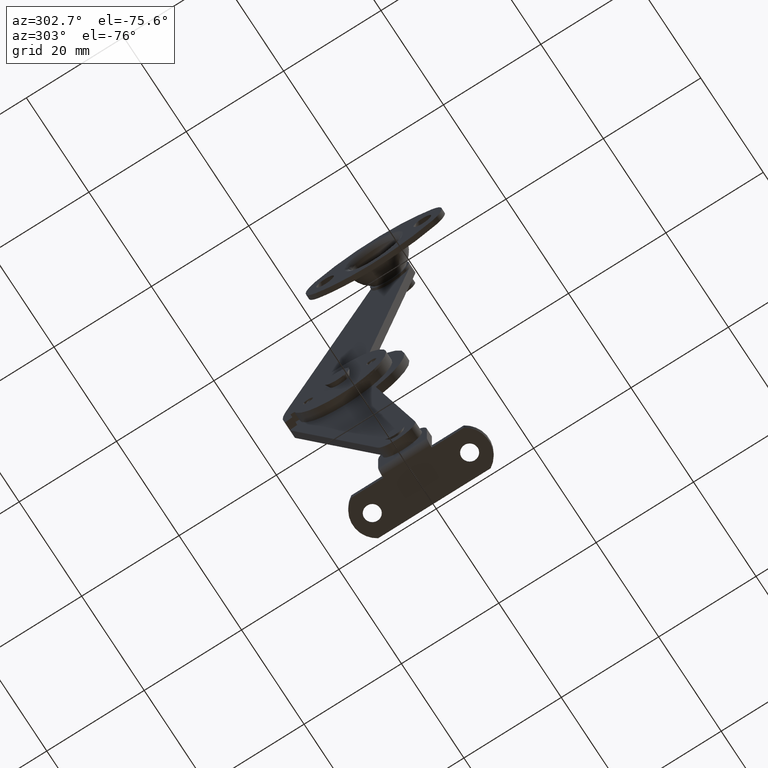
[diagram: clean part render]
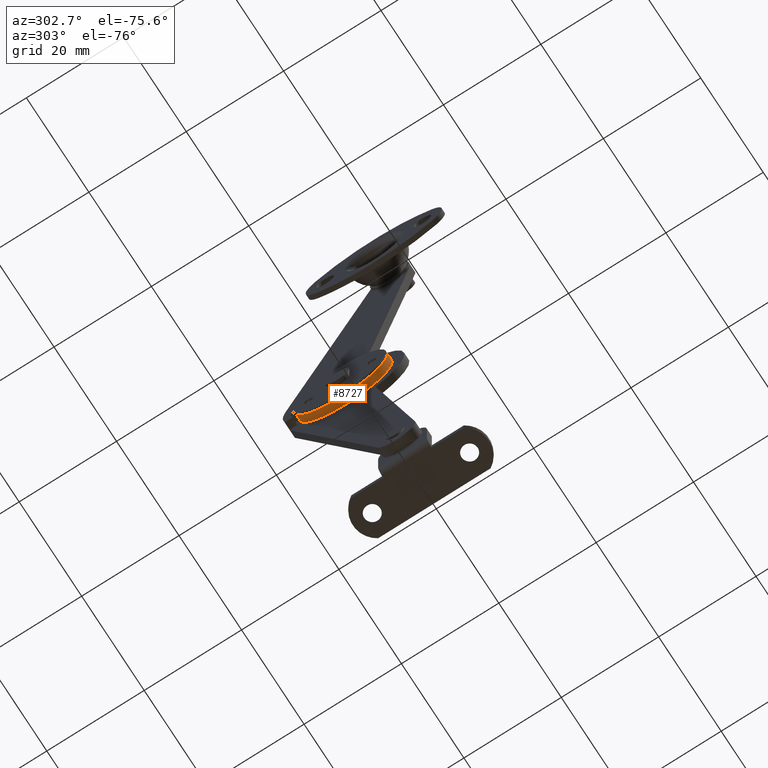
[diagram: same view with one face highlighted and labeled with its STEP entity id]
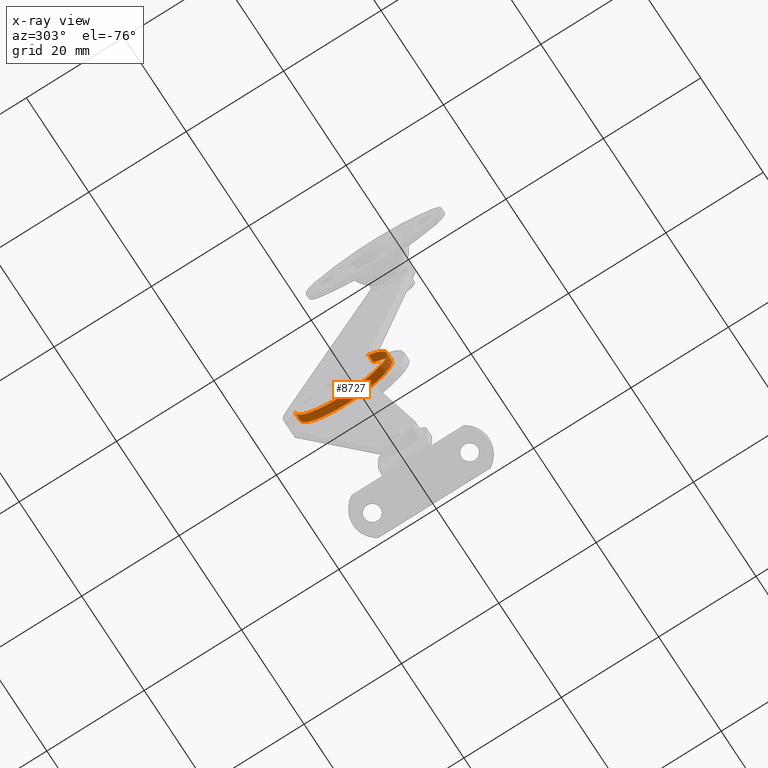
[diagram: x-ray of the same camera — body ghosted, the highlighted face saturated]
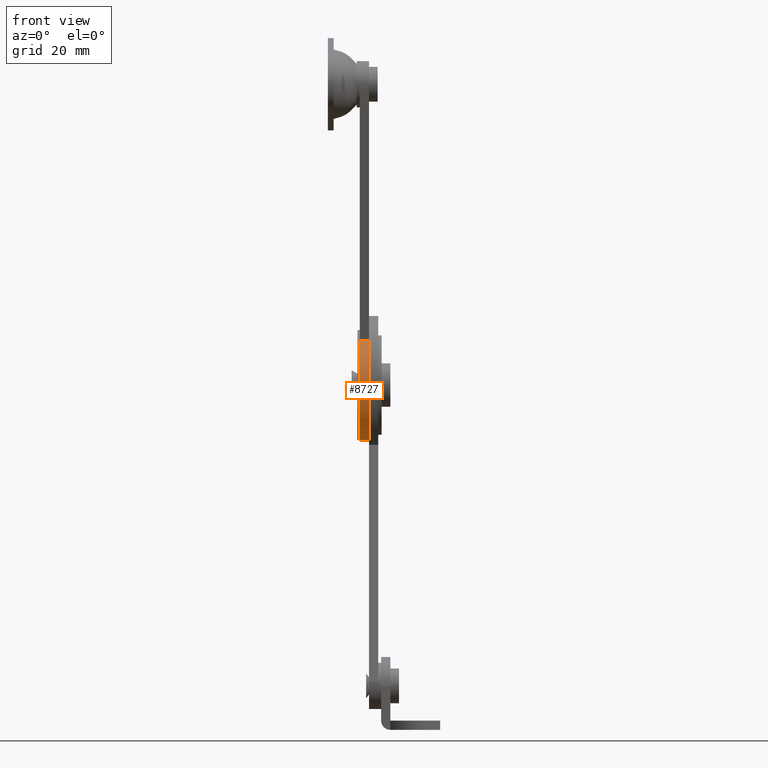
[diagram: same view with one face highlighted and labeled with its STEP entity id]
A machine part, auxiliary view. The second image highlights one B-rep face of the part: STEP entity #8727.
The next image is the same camera in x-ray: the body ghosted, the highlighted face saturated — about 0% of this face is hidden behind the body in this view.
A second angle (front view) of the same face is appended — the face is thin or edge-on in the first view.
In plain terms, the highlighted face is a freeform B-spline surface patch.
Its self-contained STEP definition (entity closure, byte-faithful):
#8419=CARTESIAN_POINT('',(7.099998474121129,4.656469198437160,7.680902571423180));
#8420=VERTEX_POINT('',#8419);
#8428=CARTESIAN_POINT('',(7.099998474121129,5.937670369422711,-8.466398796256804));
#8429=VERTEX_POINT('',#8428);
#8430=CARTESIAN_POINT('',(7.099998474121129,4.656469198437160,7.680902571423180));
#8431=CARTESIAN_POINT('',(7.099998474121134,4.084674890781572,7.264871438171109));
#8432=CARTESIAN_POINT('',(7.099998474121125,3.203485215183897,6.458667865161681));
#8433=CARTESIAN_POINT('',(7.099998474121130,2.080351654999419,4.958255166138802));
#8434=CARTESIAN_POINT('',(7.099998474121122,1.303574776849243,3.387134701351992));
#8435=CARTESIAN_POINT('',(7.099998474121208,0.788964370895096,1.450799136912070));
#8436=CARTESIAN_POINT('',(7.099998474120907,0.687732236075419,-0.478692396132566));
#8437=CARTESIAN_POINT('',(7.099998474121479,0.996965935983563,-2.407597367594883));
#8438=CARTESIAN_POINT('',(7.099998474120658,1.536844477576256,-3.884966780962328));
#8439=CARTESIAN_POINT('',(7.099998474121305,2.303410796083655,-5.281997043939483));
#8440=CARTESIAN_POINT('',(7.099998474121183,3.264869058144763,-6.527681503594284));
#8441=CARTESIAN_POINT('',(7.099998474120984,4.559142699207901,-7.667353875431160));
#8442=CARTESIAN_POINT('',(7.099998474121462,5.487534515975678,-8.237321549593775));
#8443=CARTESIAN_POINT('',(7.099998474121129,5.937670369422711,-8.466398796256804));
#8444=B_SPLINE_CURVE_WITH_KNOTS('',3,(#8430,#8431,#8432,#8433,#8434,#8435,#8436,#8437,#8438,#8439,#8440,#8441,#8442,#8443),.UNSPECIFIED.,.F.,.U.,(4,1,1,1,1,1,1,1,1,1,1,4),(0.000000155767108,2.121361335697557,3.560853023858369,5.606478112943421,7.349032828535579,9.546173587885868,11.364437923839080,13.182772189455211,14.243452115742540,16.137536458008160,17.880121786336641,19.395342121586548),.UNSPECIFIED.);
#8445=EDGE_CURVE('',#8420,#8429,#8444,.T.);
#8447=CARTESIAN_POINT('',(7.099998474121129,19.746973262321148,0.0));
#8448=VERTEX_POINT('',#8447);
#8449=CARTESIAN_POINT('',(7.099998474121129,5.937670369422711,-8.466398796256804));
#8450=CARTESIAN_POINT('',(7.099998474121105,6.702791632096307,-8.856152685871408));
#8451=CARTESIAN_POINT('',(7.099998474121150,7.978505447440620,-9.300105053948473));
#8452=CARTESIAN_POINT('',(7.099998474121103,10.039446812884950,-9.556754378664090));
#8453=CARTESIAN_POINT('',(7.099998474121158,11.688176623646800,-9.445353926765151));
#8454=CARTESIAN_POINT('',(7.099998474121088,13.257442397512641,-9.042941324443525));
#8455=CARTESIAN_POINT('',(7.099998474121146,14.521751506314541,-8.522543718540669));
#8456=CARTESIAN_POINT('',(7.099998474121123,15.674413837817159,-7.834677401869753));
#8457=CARTESIAN_POINT('',(7.099998474121133,16.837632628512871,-6.898689657837614));
#8458=CARTESIAN_POINT('',(7.099998474121111,17.958957913411648,-5.655144365470036));
#8459=CARTESIAN_POINT('',(7.099998474121122,18.812301414592461,-4.212915695702821));
#8460=CARTESIAN_POINT('',(7.099998474121125,19.538498141449899,-2.323145343613707));
#8461=CARTESIAN_POINT('',(7.099998474121269,19.747465840628951,-0.959730492879095));
#8462=CARTESIAN_POINT('',(7.099998474121129,19.746973262321148,0.0));
#8463=B_SPLINE_CURVE_WITH_KNOTS('',3,(#8449,#8450,#8451,#8452,#8453,#8454,#8455,#8456,#8457,#8458,#8459,#8460,#8461,#8462),.UNSPECIFIED.,.F.,.U.,(4,1,1,1,1,1,1,1,1,1,1,4),(0.000000155776981,2.575921705882248,4.015431070054653,6.212581897844586,7.500548499585385,8.864307468413367,10.303718966746731,11.515954071329389,13.334293185062410,15.304137321411060,16.516367007691638,19.395338404855661),.UNSPECIFIED.);
#8464=EDGE_CURVE('',#8429,#8448,#8463,.T.);
#8556=CARTESIAN_POINT('',(5.500000000000000,4.656469198437160,7.680902571423180));
#8557=VERTEX_POINT('',#8556);
#8611=CARTESIAN_POINT('',(5.500000000000000,19.746973262321148,0.0));
#8612=VERTEX_POINT('',#8611);
#8618=CARTESIAN_POINT('',(5.500000000000000,5.937670369422711,-8.466398796256804));
#8619=VERTEX_POINT('',#8618);
#8620=CARTESIAN_POINT('',(5.500000000000000,5.937670369422711,-8.466398796256804));
#8621=CARTESIAN_POINT('',(5.499999999999994,6.410283466294615,-8.706990703509902));
#8622=CARTESIAN_POINT('',(5.500000000000011,7.466354850456902,-9.137465978531964));
#8623=CARTESIAN_POINT('',(5.499999999999966,9.005499612903677,-9.461735896553616));
#8624=CARTESIAN_POINT('',(5.500000000000084,10.775689197786020,-9.539985324447740));
#8625=CARTESIAN_POINT('',(5.499999999999888,12.487740566786719,-9.300029491827903));
#8626=CARTESIAN_POINT('',(5.500000000000068,14.421874321180940,-8.610040843958021));
#8627=CARTESIAN_POINT('',(5.499999999999977,16.069908337003870,-7.599762606238156));
#8628=CARTESIAN_POINT('',(5.500000000000003,17.332192200081391,-6.386899899740438));
#8629=CARTESIAN_POINT('',(5.500000000000003,18.281443326044329,-5.138147547879933));
#8630=CARTESIAN_POINT('',(5.499999999999912,19.118196700240691,-3.601220276387870));
#8631=CARTESIAN_POINT('',(5.500000000000186,19.644184106006769,-1.793069675451823));
#8632=CARTESIAN_POINT('',(5.499999999999936,19.746975247109930,-0.505065847495876));
#8633=CARTESIAN_POINT('',(5.500000000000000,19.746973262321148,0.0));
#8634=B_SPLINE_CURVE_WITH_KNOTS('',3,(#8620,#8621,#8622,#8623,#8624,#8625,#8626,#8627,#8628,#8629,#8630,#8631,#8632,#8633),.UNSPECIFIED.,.F.,.U.,(4,1,1,1,1,1,1,1,1,1,1,4),(0.000000155776981,1.590986799744687,3.409328425976419,4.697308775019891,6.894464404159786,8.561272004270398,10.834071939926609,12.652407877500220,13.788867640935941,15.531437796714419,17.880118359947929,19.395338404855661),.UNSPECIFIED.);
#8635=EDGE_CURVE('',#8619,#8612,#8634,.T.);
#8637=CARTESIAN_POINT('',(5.500000000000000,4.656469198437160,7.680902571423180));
#8638=CARTESIAN_POINT('',(5.499999999999996,3.880222101710592,7.116529838066773));
#8639=CARTESIAN_POINT('',(5.499999999999999,2.882690155021486,6.127259352451097));
#8640=CARTESIAN_POINT('',(5.500000000000002,1.870770848077844,4.550968747433390));
#8641=CARTESIAN_POINT('',(5.500000000000003,1.209492339300113,3.098830711306991));
#8642=CARTESIAN_POINT('',(5.499999999999988,0.829339654638088,1.570550086127214));
#8643=CARTESIAN_POINT('',(5.500000000000017,0.716018226170354,0.005695115790474));
#8644=CARTESIAN_POINT('',(5.499999999999962,0.799367026014176,-1.232499039855371));
#8645=CARTESIAN_POINT('',(5.500000000000054,1.084084027163781,-2.645836374572812));
#8646=CARTESIAN_POINT('',(5.499999999999884,1.676003130295425,-4.266335817250842));
#8647=CARTESIAN_POINT('',(5.500000000000081,2.657634567206474,-5.812356561964253));
#8648=CARTESIAN_POINT('',(5.499999999999938,4.083571331305950,-7.321481364101527));
#8649=CARTESIAN_POINT('',(5.500000000000189,5.172282984262086,-8.077154885653984));
#8650=CARTESIAN_POINT('',(5.500000000000000,5.937670369422711,-8.466398796256804));
#8651=B_SPLINE_CURVE_WITH_KNOTS('',3,(#8637,#8638,#8639,#8640,#8641,#8642,#8643,#8644,#8645,#8646,#8647,#8648,#8649,#8650),.UNSPECIFIED.,.F.,.U.,(4,1,1,1,1,1,1,1,1,1,1,4),(0.000000155767108,2.878971063833806,4.166959632383692,5.606478112943421,7.652077235956732,8.864309167096774,10.303720941221350,11.364437923839080,13.182772189455211,15.455667468214751,16.819412495613680,19.395342121586548),.UNSPECIFIED.);
#8652=EDGE_CURVE('',#8557,#8619,#8651,.T.);
#8689=CARTESIAN_POINT('',(5.460000038146972,19.743502593022750,0.256769684978388));
#8690=CARTESIAN_POINT('',(7.140998435020483,19.743502593022750,0.256769684978388));
#8691=CARTESIAN_POINT('',(5.460000038146972,19.958957940985695,-7.711764573877558));
#8692=CARTESIAN_POINT('',(7.140998435020483,19.958957940985695,-7.711764573877558));
#8693=CARTESIAN_POINT('',(5.460000038146972,12.148897051263329,-9.307668123706243));
#8694=CARTESIAN_POINT('',(7.140998435020483,12.148897051263329,-9.307668123706243));
#8695=CARTESIAN_POINT('',(5.460000038146972,4.338836161540960,-10.903571673534925));
#8696=CARTESIAN_POINT('',(7.140998435020483,4.338836161540960,-10.903571673534925));
#8697=CARTESIAN_POINT('',(5.460000038146972,1.410975131641916,-3.489288900998851));
#8698=CARTESIAN_POINT('',(7.140998435020483,1.410975131641916,-3.489288900998851));
#8699=CARTESIAN_POINT('',(5.460000038146972,-1.516885898257124,3.924993871537225));
#8700=CARTESIAN_POINT('',(7.140998435020483,-1.516885898257124,3.924993871537225));
#8701=CARTESIAN_POINT('',(5.460000038146972,5.276339526857260,8.095850805682314));
#8702=CARTESIAN_POINT('',(7.140998435020483,5.276339526857260,8.095850805682314));
#8710=(BOUNDED_SURFACE()B_SPLINE_SURFACE(1,2,((#8689,#8691,#8693,#8695,#8697,#8699,#8701),(#8690,#8692,#8694,#8696,#8698,#8700,#8702)),.UNSPECIFIED.,.F.,.F.,.U.)B_SPLINE_SURFACE_WITH_KNOTS((2,2),(3,2,2,3),(0.0,1.0),(0.0,13.830868902115689,27.661737804231379,41.492606706347068),.UNSPECIFIED.)GEOMETRIC_REPRESENTATION_ITEM()RATIONAL_B_SPLINE_SURFACE(((1.0,0.766044443118978,1.0,0.766044443118978,1.0,0.766044443118978,1.0),(1.0,0.766044443118978,1.0,0.766044443118978,1.0,0.766044443118978,1.0)))REPRESENTATION_ITEM('')SURFACE());
#8711=ORIENTED_EDGE('',*,*,#8464,.F.);
#8712=ORIENTED_EDGE('',*,*,#8445,.F.);
#8713=CARTESIAN_POINT('',(5.500000000000000,4.656469198437160,7.680902571423180));
#8714=CARTESIAN_POINT('',(7.099998474121129,4.656469198437160,7.680902571423180));
#8715=QUASI_UNIFORM_CURVE('',1,(#8713,#8714),.UNSPECIFIED.,.F.,.U.);
#8716=EDGE_CURVE('',#8557,#8420,#8715,.T.);
#8717=ORIENTED_EDGE('',*,*,#8716,.F.);
#8718=ORIENTED_EDGE('',*,*,#8652,.T.);
#8719=ORIENTED_EDGE('',*,*,#8635,.T.);
#8720=CARTESIAN_POINT('',(5.500000000000000,19.746973262321148,0.0));
#8721=CARTESIAN_POINT('',(7.099998474121129,19.746973262321148,0.0));
#8722=QUASI_UNIFORM_CURVE('',1,(#8720,#8721),.UNSPECIFIED.,.F.,.U.);
#8723=EDGE_CURVE('',#8612,#8448,#8722,.T.);
#8724=ORIENTED_EDGE('',*,*,#8723,.T.);
#8725=EDGE_LOOP('',(#8711,#8712,#8717,#8718,#8719,#8724));
#8726=FACE_OUTER_BOUND('',#8725,.T.);
#8727=ADVANCED_FACE('',(#8726),#8710,.T.);